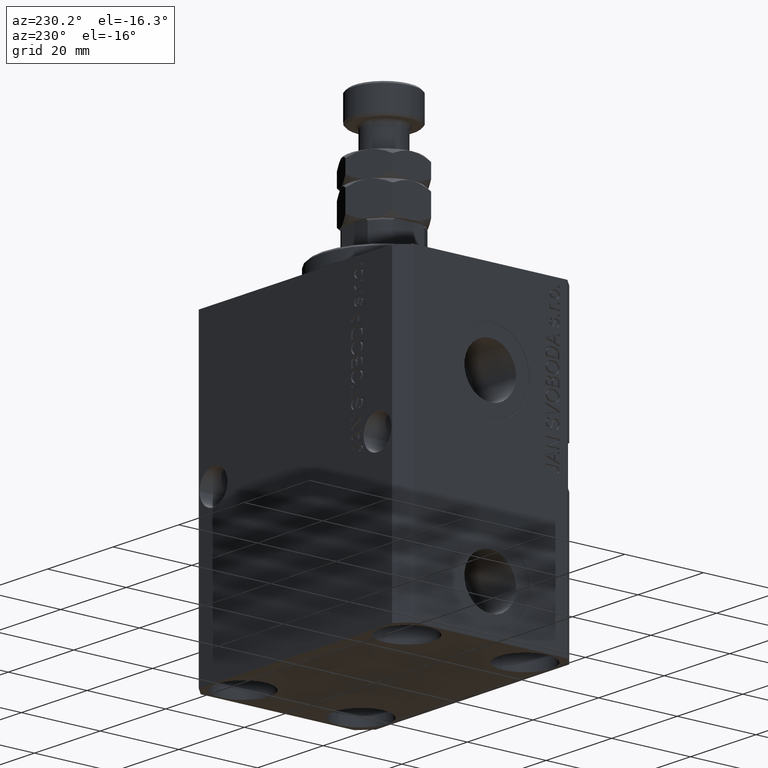
[diagram: clean part render]
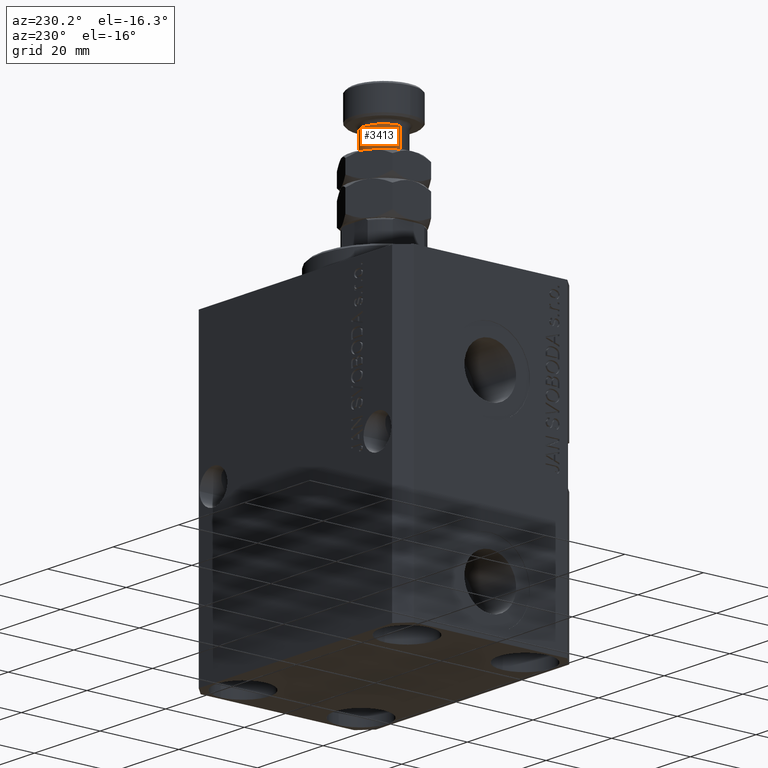
[diagram: same view with one face highlighted and labeled with its STEP entity id]
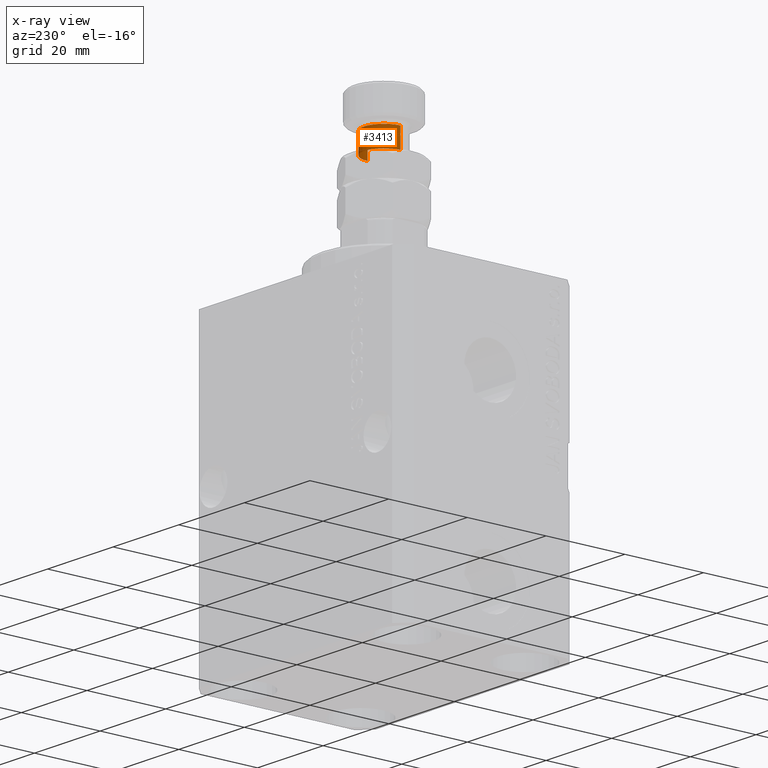
[diagram: x-ray of the same camera — body ghosted, the highlighted face saturated]
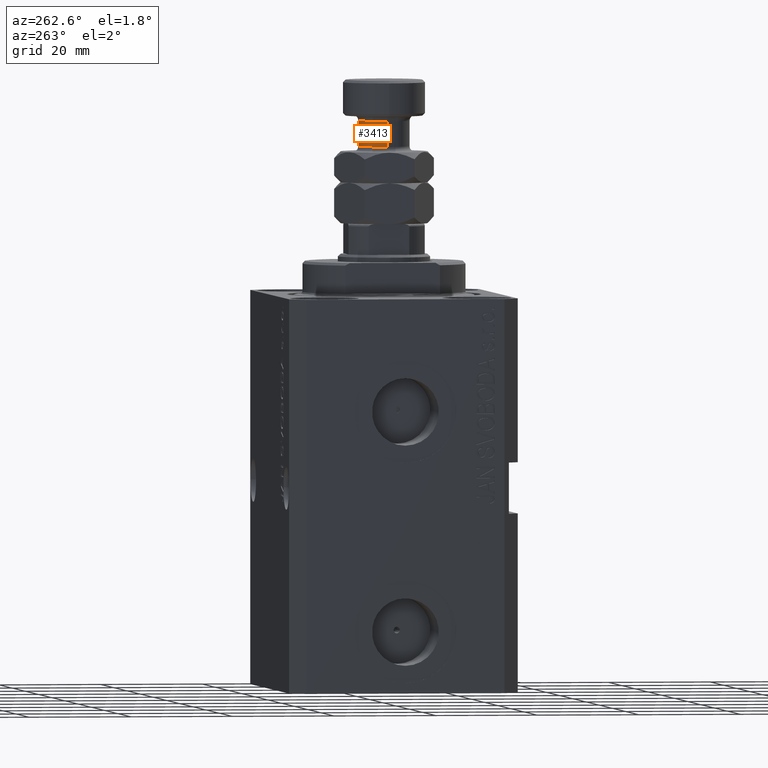
[diagram: same view with one face highlighted and labeled with its STEP entity id]
A machine part, auxiliary view. The second image highlights one B-rep face of the part: STEP entity #3413.
The next image is the same camera in x-ray: the body ghosted, the highlighted face saturated — about 0% of this face is hidden behind the body in this view.
A second angle (auxiliary view) of the same face is appended — the face is thin or edge-on in the first view.
In plain terms, the highlighted cylindrical surface (edge-blend (fillet) strip) has radius 5 mm, axis along (-0, -0, -1).
Its self-contained STEP definition (entity closure, byte-faithful):
#556 = CIRCLE ( 'NONE', #14648, 5.000000000000000000 ) ;
#759 = EDGE_CURVE ( 'NONE', #35829, #33426, #556, .T. ) ;
#1263 = CARTESIAN_POINT ( 'NONE',  ( 5.000000000000000000, 6.123233995736766282E-16, 15.00000000000000000 ) ) ;
#1851 = LINE ( 'NONE', #26087, #31412 ) ;
#2669 = ORIENTED_EDGE ( 'NONE', *, *, #29306, .F. ) ;
#2736 = CARTESIAN_POINT ( 'NONE',  ( 5.000000000000000000, 6.123233995736766282E-16, 20.00000000000000000 ) ) ;
#3413 = ADVANCED_FACE ( 'NONE', ( #27543 ), #16092, .T. ) ;
#3589 = ORIENTED_EDGE ( 'NONE', *, *, #759, .T. ) ;
#3965 = LINE ( 'NONE', #7000, #23599 ) ;
#4758 = EDGE_CURVE ( 'NONE', #33426, #13581, #3965, .T. ) ;
#7000 = CARTESIAN_POINT ( 'NONE',  ( 5.000000000000000000, 6.123233995736766282E-16, 21.00000000000000000 ) ) ;
#7113 = CARTESIAN_POINT ( 'NONE',  ( 0.000000000000000000, 0.000000000000000000, 15.00000000000000000 ) ) ;
#9039 = DIRECTION ( 'NONE',  ( -0.000000000000000000, -0.000000000000000000, -1.000000000000000000 ) ) ;
#9121 = CARTESIAN_POINT ( 'NONE',  ( 0.000000000000000000, 0.000000000000000000, 21.00000000000000000 ) ) ;
#9433 = AXIS2_PLACEMENT_3D ( 'NONE', #9121, #34764, #34997 ) ;
#11132 = CARTESIAN_POINT ( 'NONE',  ( -5.000000000000000000, 0.000000000000000000, 20.00000000000000000 ) ) ;
#12423 = DIRECTION ( 'NONE',  ( 1.000000000000000000, 0.000000000000000000, 0.000000000000000000 ) ) ;
#13581 = VERTEX_POINT ( 'NONE', #1263 ) ;
#14648 = AXIS2_PLACEMENT_3D ( 'NONE', #29924, #40654, #12423 ) ;
#16092 = CYLINDRICAL_SURFACE ( 'NONE', #9433, 5.000000000000000000 ) ;
#23599 = VECTOR ( 'NONE', #31473, 1000.000000000000000 ) ;
#26087 = CARTESIAN_POINT ( 'NONE',  ( -5.000000000000000000, 0.000000000000000000, 21.00000000000000000 ) ) ;
#27543 = FACE_OUTER_BOUND ( 'NONE', #40705, .T. ) ;
#29306 = EDGE_CURVE ( 'NONE', #35829, #38566, #1851, .T. ) ;
#29924 = CARTESIAN_POINT ( 'NONE',  ( 0.000000000000000000, 0.000000000000000000, 20.00000000000000000 ) ) ;
#31412 = VECTOR ( 'NONE', #9039, 1000.000000000000000 ) ;
#31473 = DIRECTION ( 'NONE',  ( -0.000000000000000000, -0.000000000000000000, -1.000000000000000000 ) ) ;
#31808 = DIRECTION ( 'NONE',  ( 0.000000000000000000, -0.000000000000000000, 1.000000000000000000 ) ) ;
#32037 = DIRECTION ( 'NONE',  ( 1.000000000000000000, 0.000000000000000000, 0.000000000000000000 ) ) ;
#33043 = AXIS2_PLACEMENT_3D ( 'NONE', #7113, #31808, #32037 ) ;
#33426 = VERTEX_POINT ( 'NONE', #2736 ) ;
#34764 = DIRECTION ( 'NONE',  ( -0.000000000000000000, -0.000000000000000000, -1.000000000000000000 ) ) ;
#34997 = DIRECTION ( 'NONE',  ( -1.000000000000000000, 0.000000000000000000, 0.000000000000000000 ) ) ;
#35829 = VERTEX_POINT ( 'NONE', #11132 ) ;
#37834 = EDGE_CURVE ( 'NONE', #13581, #38566, #39030, .T. ) ;
#38566 = VERTEX_POINT ( 'NONE', #39162 ) ;
#39030 = CIRCLE ( 'NONE', #33043, 5.000000000000000000 ) ;
#39162 = CARTESIAN_POINT ( 'NONE',  ( -5.000000000000000000, 0.000000000000000000, 15.00000000000000000 ) ) ;
#40654 = DIRECTION ( 'NONE',  ( -0.000000000000000000, -0.000000000000000000, -1.000000000000000000 ) ) ;
#40705 = EDGE_LOOP ( 'NONE', ( #3589, #41963, #45493, #2669 ) ) ;
#41963 = ORIENTED_EDGE ( 'NONE', *, *, #4758, .T. ) ;
#45493 = ORIENTED_EDGE ( 'NONE', *, *, #37834, .T. ) ;